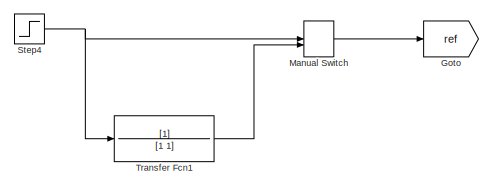
[diagram: root canvas - part 1/7, top center region]
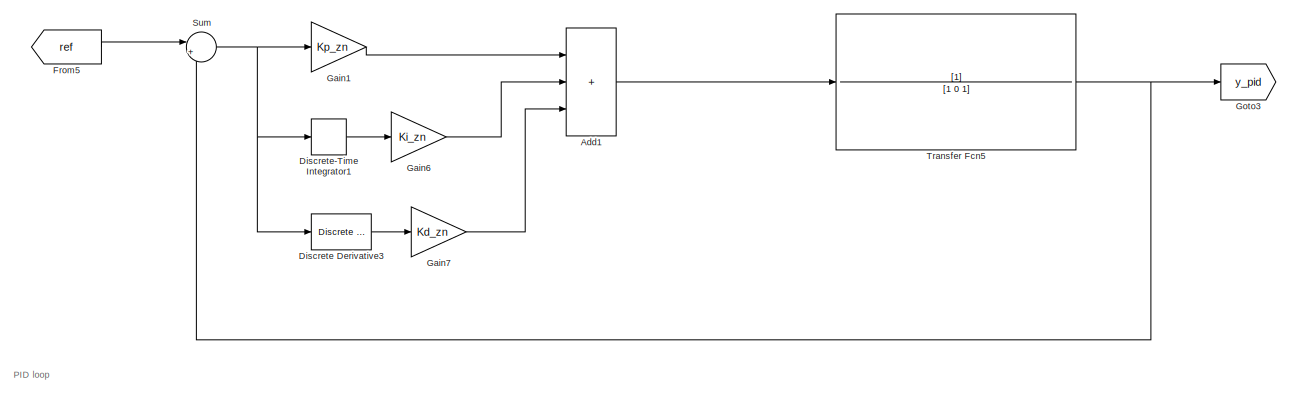
[diagram: root canvas - part 2/7, top right region]
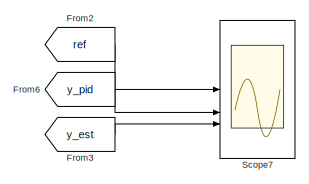
[diagram: root canvas - part 3/7, middle right region]
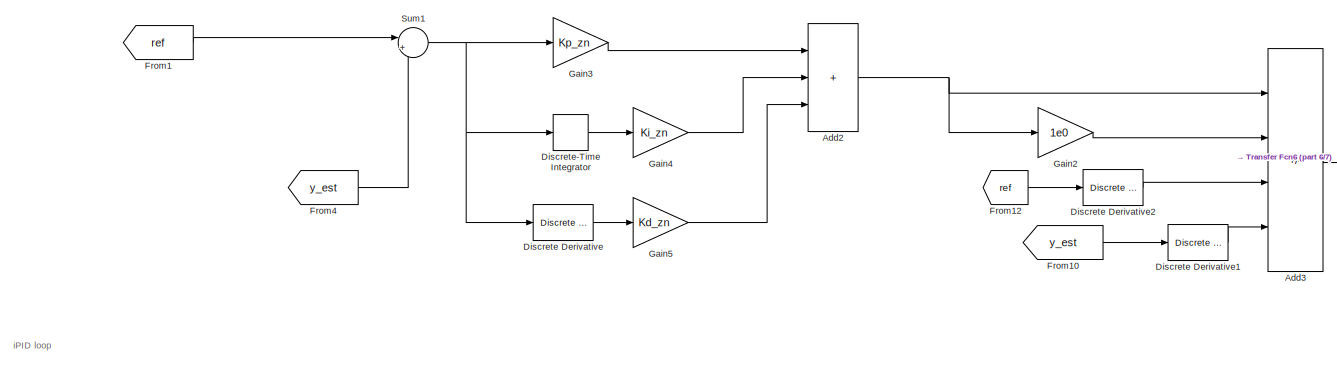
[diagram: root canvas - part 4/7, bottom center region]
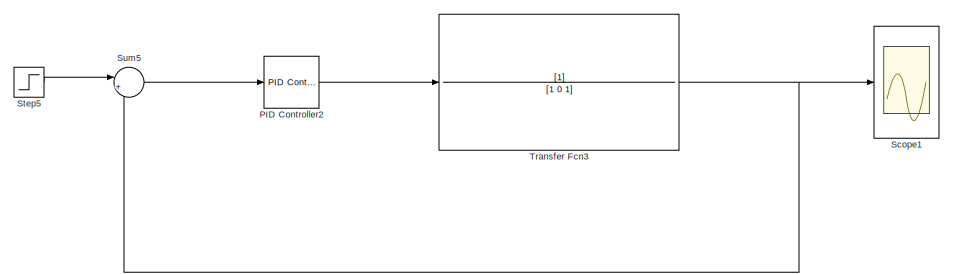
[diagram: root canvas - part 5/7, bottom left region]
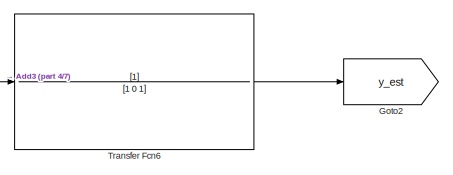
[diagram: root canvas - part 6/7, bottom right region]
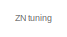
[diagram: root canvas - part 7/7, bottom left region]
MODEL slx_4442ed2d788a
KIND model
CONFIG AbsTol = auto
CONFIG EnableMultiTasking = off
CONFIG FixedStep = auto
CONFIG MaxStep = 1e-4
CONFIG MinStep = auto
CONFIG RelTol = 1e-3
CONFIG SampleTimeConstraint = Unconstrained
CONFIG SolverName = VariableStepAuto
CONFIG StartTime = 0.0
CONFIG StopTime = 30
BLOCK [Sum] Add1
  IconShape = rectangular
  Inputs = +++
BLOCK [Sum] Add2
  IconShape = rectangular
  Inputs = +++
BLOCK [Sum] Add3
  IconShape = rectangular
  Inputs = +++-
BLOCK [Reference] Discrete Derivative  REF=simulink/Discrete/Discrete Derivative
  SourceBlock = simulink/Discrete/Discrete Derivative
  SourceType = Discrete Derivative
BLOCK [Reference] Discrete Derivative1  REF=simulink/Discrete/Discrete Derivative
  SourceBlock = simulink/Discrete/Discrete Derivative
  SourceType = Discrete Derivative
BLOCK [Reference] Discrete Derivative2  REF=simulink/Discrete/Discrete Derivative
  SourceBlock = simulink/Discrete/Discrete Derivative
  SourceType = Discrete Derivative
BLOCK [Reference] Discrete Derivative3  REF=simulink/Discrete/Discrete Derivative
  SourceBlock = simulink/Discrete/Discrete Derivative
  SourceType = Discrete Derivative
BLOCK [DiscreteIntegrator] Discrete-Time Integrator
  ICPrevOutput = DiscIntNeverNeededParam
  ICPrevScaledInput = DiscIntNeverNeededParam
  InitialConditionSetting = Auto
  SampleTime = -1
BLOCK [DiscreteIntegrator] Discrete-Time Integrator1
  ICPrevOutput = DiscIntNeverNeededParam
  ICPrevScaledInput = DiscIntNeverNeededParam
  InitialConditionSetting = Auto
  SampleTime = -1
BLOCK [From] From1
  GotoTag = ref
BLOCK [From] From10
  GotoTag = y_est
BLOCK [From] From12
  GotoTag = ref
BLOCK [From] From2
  GotoTag = ref
BLOCK [From] From3
  GotoTag = y_est
BLOCK [From] From4
  GotoTag = y_est
BLOCK [From] From5
  GotoTag = ref
BLOCK [From] From6
  GotoTag = y_pid
BLOCK [Gain] Gain1
  Gain = Kp_zn
BLOCK [Gain] Gain2
  Gain = 1e0
BLOCK [Gain] Gain3
  Gain = Kp_zn
BLOCK [Gain] Gain4
  Gain = Ki_zn
BLOCK [Gain] Gain5
  Gain = Kd_zn
BLOCK [Gain] Gain6
  Gain = Ki_zn
BLOCK [Gain] Gain7
  Gain = Kd_zn
BLOCK [Goto] Goto
  GotoTag = ref
BLOCK [Goto] Goto2
  GotoTag = y_est
BLOCK [Goto] Goto3
  GotoTag = y_pid
BLOCK [ManualSwitch] Manual Switch
BLOCK [Reference] PID Controller2  REF=slpidlib/PID Controller
  LibrarySourceBlock = simulink/Continuous/PID Controller
  SourceBlock = slpidlib/PID Controller
  SourceType = PID 1dof
BLOCK [Scope] Scope1
  Floating = off
  NumInputPorts = 1
  ScopeSpecificationString = Simulink.scopes.TimeScopeBlockCfg('CurrentConfiguration', extmgr.ConfigurationSet(extmgr.Configuration('Core','General UI',true),extmgr.Configuration('Core','Source UI',true),extmgr.Configuration('Sources','WiredSimulink',true,'DataLoggingVariableName','ScopeData1'),extmgr.Configuration('Visuals','Time Domain',true,'SerializedDisplays',{struct('MinYLimReal','-0.20833','MaxYLimReal','1.875','YLabel...<+1735ch>
BLOCK [Scope] Scope7
  Floating = off
  NumInputPorts = 3
  ScopeSpecificationString = Simulink.scopes.TimeScopeBlockCfg('CurrentConfiguration', extmgr.ConfigurationSet(extmgr.Configuration('Core','General UI',true),extmgr.Configuration('Core','Source UI',true),extmgr.Configuration('Sources','WiredSimulink',true,'DataLoggingVariableName','ScopeData1'),extmgr.Configuration('Visuals','Time Domain',true,'SerializedDisplays',{struct('MinYLimReal','-0.13333','MaxYLimReal','1.19997','YLab...<+1534ch>
BLOCK [Step] Step4
  SampleTime = 0
BLOCK [Step] Step5
  SampleTime = 0
BLOCK [Sum] Sum
  Inputs = |+-
BLOCK [Sum] Sum1
  Inputs = |+-
BLOCK [Sum] Sum5
  Inputs = |+-
BLOCK [TransferFcn] Transfer Fcn1
  Denominator = [1 1]
BLOCK [TransferFcn] Transfer Fcn3
  Denominator = [1 0 1]
BLOCK [TransferFcn] Transfer Fcn5
  Denominator = [1 0 1]
BLOCK [TransferFcn] Transfer Fcn6
  Denominator = [1 0 1]
ANNOTATION (root): PID loop
ANNOTATION (root): ZN tuning
ANNOTATION (root): iPID loop
LINE Add1:1 -> Transfer Fcn5:1
NET Add2:1 -> Add3:1, Gain2:1
LINE Add3:1 -> Transfer Fcn6:1
LINE Discrete Derivative1:1 -> Add3:4
LINE Discrete Derivative2:1 -> Add3:3
LINE Discrete Derivative3:1 -> Gain7:1
LINE Discrete Derivative:1 -> Gain5:1
LINE Discrete-Time Integrator1:1 -> Gain6:1
LINE Discrete-Time Integrator:1 -> Gain4:1
LINE From10:1 -> Discrete Derivative1:1
LINE From12:1 -> Discrete Derivative2:1
LINE From1:1 -> Sum1:1
LINE From2:1 -> Scope7:1
LINE From3:1 -> Scope7:3
LINE From4:1 -> Sum1:2
LINE From5:1 -> Sum:1
LINE From6:1 -> Scope7:2
LINE Gain1:1 -> Add1:1
LINE Gain2:1 -> Add3:2
LINE Gain3:1 -> Add2:1
LINE Gain4:1 -> Add2:2
LINE Gain5:1 -> Add2:3
LINE Gain6:1 -> Add1:2
LINE Gain7:1 -> Add1:3
LINE Manual Switch:1 -> Goto:1
LINE PID Controller2:1 -> Transfer Fcn3:1
NET Step4:1 -> Manual Switch:1, Transfer Fcn1:1
LINE Step5:1 -> Sum5:1
NET Sum1:1 -> Discrete Derivative:1, Discrete-Time Integrator:1, Gain3:1
LINE Sum5:1 -> PID Controller2:1
NET Sum:1 -> Discrete Derivative3:1, Discrete-Time Integrator1:1, Gain1:1
LINE Transfer Fcn1:1 -> Manual Switch:2
NET Transfer Fcn3:1 -> Scope1:1, Sum5:2
NET Transfer Fcn5:1 -> Goto3:1, Sum:2
LINE Transfer Fcn6:1 -> Goto2:1
note: NET lines group one-source signal fan-out (src -> all destinations, sorted); 1:1 wires keep LINE
